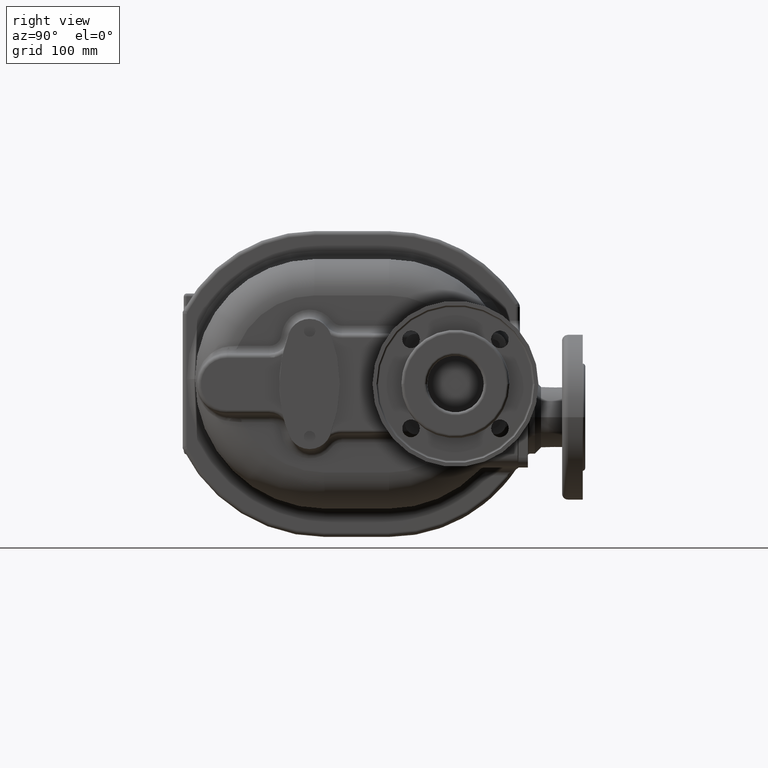
[diagram: clean part render]
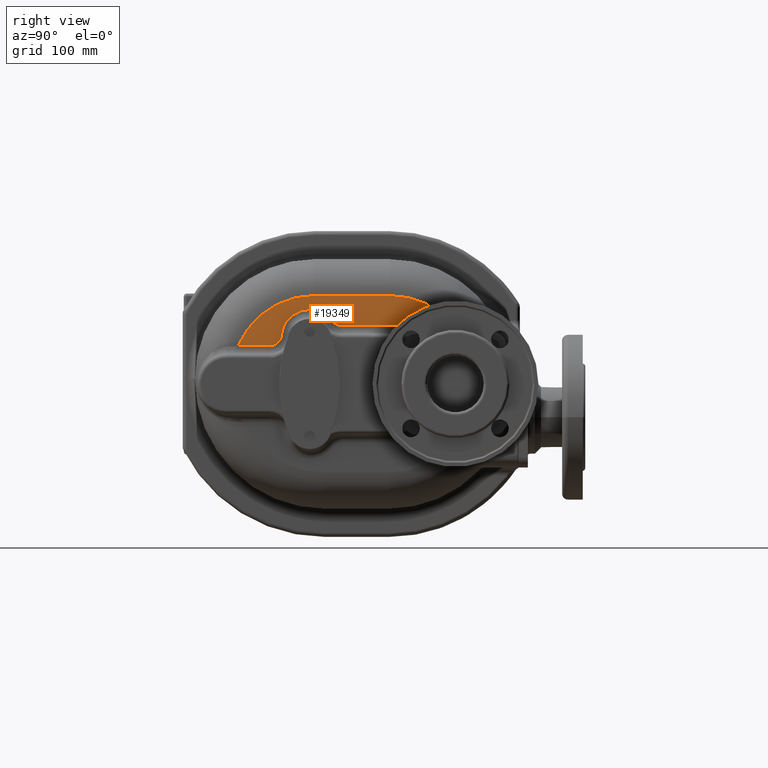
[diagram: same view with one face highlighted and labeled with its STEP entity id]
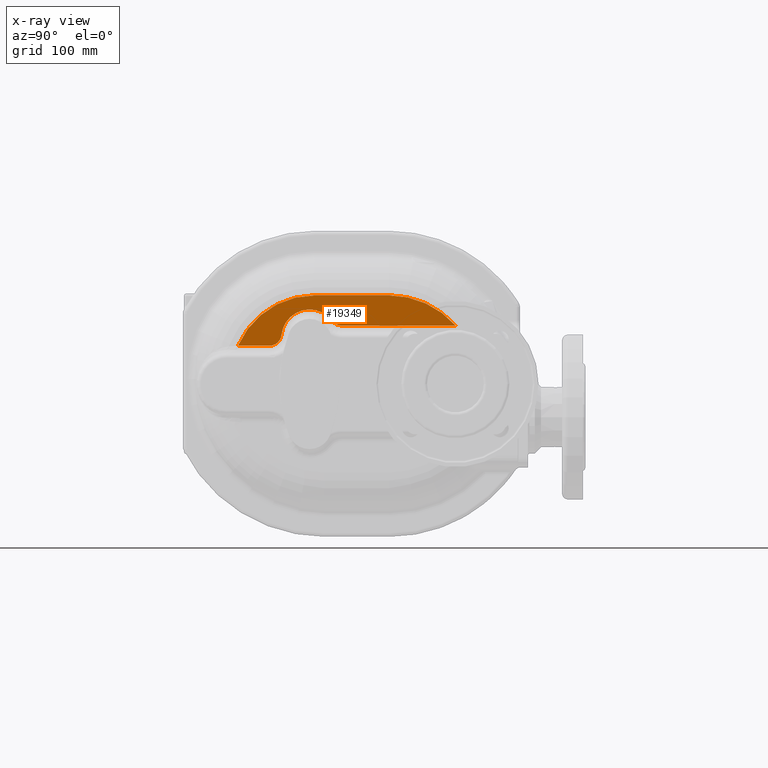
[diagram: x-ray of the same camera — body ghosted, the highlighted face saturated]
A machine part, right view. The second image highlights one B-rep face of the part: STEP entity #19349.
The next image is the same camera in x-ray: the body ghosted, the highlighted face saturated — about 0% of this face is hidden behind the body in this view.
In plain terms, the highlighted planar face has unit normal (-1, 0, 0).
Its self-contained STEP definition (entity closure, byte-faithful):
#5898=DIRECTION('',(0.E0,-1.E0,0.E0));
#5899=VECTOR('',#5898,1.131815684312E2);
#5900=CARTESIAN_POINT('',(8.4E1,1.351815684312E2,4.8E1));
#5901=LINE('',#5900,#5899);
#5902=CARTESIAN_POINT('',(8.4E1,2.2E1,6.E1));
#5903=DIRECTION('',(-1.E0,0.E0,0.E0));
#5904=DIRECTION('',(0.E0,0.E0,-1.E0));
#5905=AXIS2_PLACEMENT_3D('',#5902,#5903,#5904);
#5907=CARTESIAN_POINT('',(8.4E1,-1.E1,3.6E1));
#5908=DIRECTION('',(1.E0,0.E0,0.E0));
#5909=DIRECTION('',(0.E0,8.E-1,6.E-1));
#5910=AXIS2_PLACEMENT_3D('',#5907,#5908,#5909);
#5912=CARTESIAN_POINT('',(8.4E1,-4.979949748426E1,4.E1));
#5913=DIRECTION('',(-1.E0,0.E0,0.E0));
#5914=DIRECTION('',(0.E0,9.949874371066E-1,-1.E-1));
#5915=AXIS2_PLACEMENT_3D('',#5912,#5913,#5914);
#5917=DIRECTION('',(0.E0,-1.E0,0.E0));
#5918=VECTOR('',#5917,3.135823357451E1);
#5919=CARTESIAN_POINT('',(8.4E1,-4.979949748426E1,2.8E1));
#5920=LINE('',#5919,#5918);
#5921=CARTESIAN_POINT('',(8.4E1,-5.E0,-5.E0));
#5922=DIRECTION('',(1.E0,0.E0,0.E0));
#5923=DIRECTION('',(0.E0,0.E0,1.E0));
#5924=AXIS2_PLACEMENT_3D('',#5921,#5922,#5923);
#5926=DIRECTION('',(0.E0,-1.E0,0.E0));
#5927=VECTOR('',#5926,7.4E1);
#5928=CARTESIAN_POINT('',(8.4E1,6.9E1,7.8E1));
#5929=LINE('',#5928,#5927);
#5930=CARTESIAN_POINT('',(8.4E1,6.9E1,-1.E1));
#5931=DIRECTION('',(1.E0,0.E0,0.E0));
#5932=DIRECTION('',(0.E0,7.520632776291E-1,6.590909090875E-1));
#5933=AXIS2_PLACEMENT_3D('',#5930,#5931,#5932);
#5999=CARTESIAN_POINT('',(8.4E1,1.351815684312E2,4.8E1));
#9909=CARTESIAN_POINT('',(8.4E1,6.9E1,7.8E1));
#9910=CARTESIAN_POINT('',(8.4E1,-5.E0,7.8E1));
#9911=VERTEX_POINT('',#9909);
#9912=VERTEX_POINT('',#9910);
#9924=VERTEX_POINT('',#5999);
#9926=CARTESIAN_POINT('',(8.4E1,2.2E1,4.8E1));
#9927=VERTEX_POINT('',#9926);
#9930=CARTESIAN_POINT('',(8.4E1,1.24E1,5.28E1));
#9931=VERTEX_POINT('',#9930);
#9934=CARTESIAN_POINT('',(8.4E1,-3.785964823899E1,3.88E1));
#9935=VERTEX_POINT('',#9934);
#9938=CARTESIAN_POINT('',(8.4E1,-4.979949748426E1,2.8E1));
#9939=VERTEX_POINT('',#9938);
#9942=CARTESIAN_POINT('',(8.4E1,-8.115773105877E1,2.8E1));
#9943=VERTEX_POINT('',#9942);
#19328=CARTESIAN_POINT('',(8.4E1,0.E0,0.E0));
#19329=DIRECTION('',(-1.E0,0.E0,0.E0));
#19330=DIRECTION('',(0.E0,0.E0,1.E0));
#19331=AXIS2_PLACEMENT_3D('',#19328,#19329,#19330);
#19332=PLANE('',#19331);
#19334=ORIENTED_EDGE('',*,*,#19333,.T.);
#19336=ORIENTED_EDGE('',*,*,#19335,.T.);
#19338=ORIENTED_EDGE('',*,*,#19337,.T.);
#19340=ORIENTED_EDGE('',*,*,#19339,.T.);
#19341=ORIENTED_EDGE('',*,*,#19318,.T.);
#19342=ORIENTED_EDGE('',*,*,#19246,.F.);
#19344=ORIENTED_EDGE('',*,*,#19343,.F.);
#19346=ORIENTED_EDGE('',*,*,#19345,.F.);
#19347=EDGE_LOOP('',(#19334,#19336,#19338,#19340,#19341,#19342,#19344,#19346));
#19348=FACE_OUTER_BOUND('',#19347,.F.);
#19349=ADVANCED_FACE('',(#19348),#19332,.F.);
#5906=CIRCLE('',#5905,1.2E1);
#5911=CIRCLE('',#5910,2.8E1);
#5916=CIRCLE('',#5915,1.2E1);
#5925=CIRCLE('',#5924,8.3E1);
#5934=CIRCLE('',#5933,8.8E1);
#19246=EDGE_CURVE('',#9912,#9943,#5925,.T.);
#19318=EDGE_CURVE('',#9939,#9943,#5920,.T.);
#19333=EDGE_CURVE('',#9924,#9927,#5901,.T.);
#19335=EDGE_CURVE('',#9927,#9931,#5906,.T.);
#19337=EDGE_CURVE('',#9931,#9935,#5911,.T.);
#19339=EDGE_CURVE('',#9935,#9939,#5916,.T.);
#19343=EDGE_CURVE('',#9911,#9912,#5929,.T.);
#19345=EDGE_CURVE('',#9924,#9911,#5934,.T.);